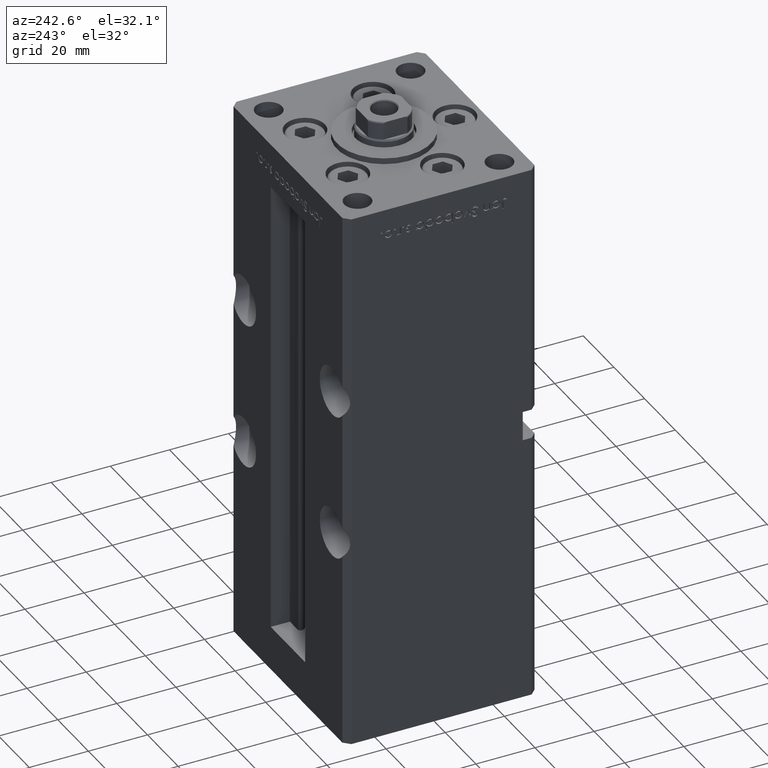
[diagram: clean part render]
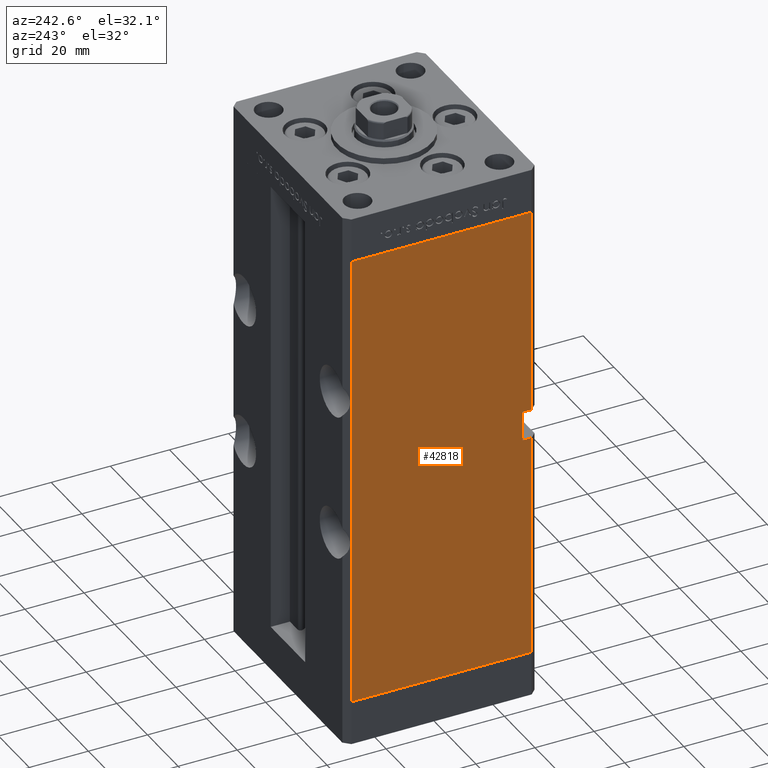
[diagram: same view with one face highlighted and labeled with its STEP entity id]
A machine part, auxiliary view. The second image highlights one B-rep face of the part: STEP entity #42818.
In plain terms, the highlighted planar face has unit normal (1, 0, 0).
Its self-contained STEP definition (entity closure, byte-faithful):
#901 = VERTEX_POINT ( 'NONE', #5851 ) ;
#1703 = LINE ( 'NONE', #13266, #46147 ) ;
#2194 = CARTESIAN_POINT ( 'NONE',  ( -37.49999999999999289, -30.50000000000000000, 156.0000000000000000 ) ) ;
#3394 = VECTOR ( 'NONE', #8040, 1000.000000000000000 ) ;
#4920 = DIRECTION ( 'NONE',  ( -0.000000000000000000, -1.000000000000000000, -0.000000000000000000 ) ) ;
#5022 = VECTOR ( 'NONE', #8159, 1000.000000000000000 ) ;
#5832 = ORIENTED_EDGE ( 'NONE', *, *, #52258, .T. ) ;
#5851 = CARTESIAN_POINT ( 'NONE',  ( -37.49999999999999289, -27.50000000000000000, 86.00000000000000000 ) ) ;
#8040 = DIRECTION ( 'NONE',  ( 3.412570772413390973E-16, -1.000000000000000000, 0.000000000000000000 ) ) ;
#8159 = DIRECTION ( 'NONE',  ( -0.000000000000000000, -1.000000000000000000, -0.000000000000000000 ) ) ;
#8288 = LINE ( 'NONE', #8561, #39393 ) ;
#8479 = VERTEX_POINT ( 'NONE', #9533 ) ;
#8561 = CARTESIAN_POINT ( 'NONE',  ( -37.50000000000001421, 30.50000000000001066, 0.000000000000000000 ) ) ;
#8603 = VECTOR ( 'NONE', #18360, 1000.000000000000000 ) ;
#9533 = CARTESIAN_POINT ( 'NONE',  ( -37.49999999999999289, -30.50000000000000000, 0.000000000000000000 ) ) ;
#9642 = CARTESIAN_POINT ( 'NONE',  ( -37.49999999999999289, -30.50000000000000000, 76.00000000000000000 ) ) ;
#9897 = ORIENTED_EDGE ( 'NONE', *, *, #9930, .F. ) ;
#9930 = EDGE_CURVE ( 'NONE', #901, #39482, #49892, .T. ) ;
#10007 = DIRECTION ( 'NONE',  ( -3.412570772413390480E-16, 1.000000000000000000, 0.000000000000000000 ) ) ;
#11654 = CARTESIAN_POINT ( 'NONE',  ( -37.49999999999999289, -27.50000000000000000, 76.00000000000000000 ) ) ;
#13005 = EDGE_CURVE ( 'NONE', #901, #20256, #1703, .T. ) ;
#13266 = CARTESIAN_POINT ( 'NONE',  ( -37.49999999999999289, -27.50000000000000000, 86.00000000000000000 ) ) ;
#14454 = CARTESIAN_POINT ( 'NONE',  ( -37.49999999999999289, -30.50000000000000000, 86.00000000000000000 ) ) ;
#16088 = CARTESIAN_POINT ( 'NONE',  ( -37.50000000000001421, 30.50000000000001066, 156.0000000000000000 ) ) ;
#18274 = VERTEX_POINT ( 'NONE', #30284 ) ;
#18281 = CARTESIAN_POINT ( 'NONE',  ( -37.50000000000001421, 30.50000000000001066, 156.0000000000000000 ) ) ;
#18360 = DIRECTION ( 'NONE',  ( -0.000000000000000000, -0.000000000000000000, -1.000000000000000000 ) ) ;
#18601 = VECTOR ( 'NONE', #42078, 1000.000000000000000 ) ;
#18896 = LINE ( 'NONE', #48198, #8603 ) ;
#20256 = VERTEX_POINT ( 'NONE', #14454 ) ;
#20383 = VECTOR ( 'NONE', #39283, 1000.000000000000000 ) ;
#21288 = VECTOR ( 'NONE', #35538, 1000.000000000000000 ) ;
#24837 = VERTEX_POINT ( 'NONE', #33986 ) ;
#26688 = ORIENTED_EDGE ( 'NONE', *, *, #43991, .T. ) ;
#28468 = LINE ( 'NONE', #16088, #3394 ) ;
#28504 = ORIENTED_EDGE ( 'NONE', *, *, #49802, .F. ) ;
#28975 = DIRECTION ( 'NONE',  ( 3.412570772413390973E-16, -1.000000000000000000, 0.000000000000000000 ) ) ;
#29911 = EDGE_LOOP ( 'NONE', ( #32705, #51336, #9897, #47132, #53194, #28504, #5832, #26688 ) ) ;
#29958 = VERTEX_POINT ( 'NONE', #18281 ) ;
#30284 = CARTESIAN_POINT ( 'NONE',  ( -37.50000000000001421, 30.50000000000001066, 0.000000000000000000 ) ) ;
#30441 = DIRECTION ( 'NONE',  ( 1.000000000000000000, 3.412570772413390480E-16, -0.000000000000000000 ) ) ;
#31222 = LINE ( 'NONE', #35531, #20383 ) ;
#32479 = AXIS2_PLACEMENT_3D ( 'NONE', #42795, #30441, #10007 ) ;
#32705 = ORIENTED_EDGE ( 'NONE', *, *, #40728, .F. ) ;
#33986 = CARTESIAN_POINT ( 'NONE',  ( -37.49999999999999289, -30.50000000000000000, 156.0000000000000000 ) ) ;
#35003 = FACE_OUTER_BOUND ( 'NONE', #29911, .T. ) ;
#35531 = CARTESIAN_POINT ( 'NONE',  ( -37.49999999999999289, -30.50000000000000000, 156.0000000000000000 ) ) ;
#35538 = DIRECTION ( 'NONE',  ( -0.000000000000000000, -0.000000000000000000, -1.000000000000000000 ) ) ;
#38082 = CARTESIAN_POINT ( 'NONE',  ( -37.49999999999999289, -27.50000000000000000, 76.00000000000000000 ) ) ;
#39109 = VERTEX_POINT ( 'NONE', #9642 ) ;
#39283 = DIRECTION ( 'NONE',  ( -0.000000000000000000, -0.000000000000000000, -1.000000000000000000 ) ) ;
#39393 = VECTOR ( 'NONE', #28975, 1000.000000000000000 ) ;
#39482 = VERTEX_POINT ( 'NONE', #38082 ) ;
#40728 = EDGE_CURVE ( 'NONE', #39109, #8479, #31222, .T. ) ;
#41594 = EDGE_CURVE ( 'NONE', #24837, #20256, #51667, .T. ) ;
#42078 = DIRECTION ( 'NONE',  ( 0.000000000000000000, 0.000000000000000000, -1.000000000000000000 ) ) ;
#42357 = CARTESIAN_POINT ( 'NONE',  ( -37.49999999999999289, -27.50000000000000000, 86.00000000000000000 ) ) ;
#42616 = EDGE_CURVE ( 'NONE', #39482, #39109, #44984, .T. ) ;
#42795 = CARTESIAN_POINT ( 'NONE',  ( -37.50000000000001421, 30.50000000000001066, 156.0000000000000000 ) ) ;
#42818 = ADVANCED_FACE ( 'NONE', ( #35003 ), #43580, .F. ) ;
#43580 = PLANE ( 'NONE',  #32479 ) ;
#43991 = EDGE_CURVE ( 'NONE', #18274, #8479, #8288, .T. ) ;
#44984 = LINE ( 'NONE', #11654, #5022 ) ;
#46147 = VECTOR ( 'NONE', #4920, 1000.000000000000000 ) ;
#47132 = ORIENTED_EDGE ( 'NONE', *, *, #13005, .T. ) ;
#48198 = CARTESIAN_POINT ( 'NONE',  ( -37.50000000000001421, 30.50000000000001066, 156.0000000000000000 ) ) ;
#49802 = EDGE_CURVE ( 'NONE', #29958, #24837, #28468, .T. ) ;
#49892 = LINE ( 'NONE', #42357, #18601 ) ;
#51336 = ORIENTED_EDGE ( 'NONE', *, *, #42616, .F. ) ;
#51667 = LINE ( 'NONE', #2194, #21288 ) ;
#52258 = EDGE_CURVE ( 'NONE', #29958, #18274, #18896, .T. ) ;
#53194 = ORIENTED_EDGE ( 'NONE', *, *, #41594, .F. ) ;